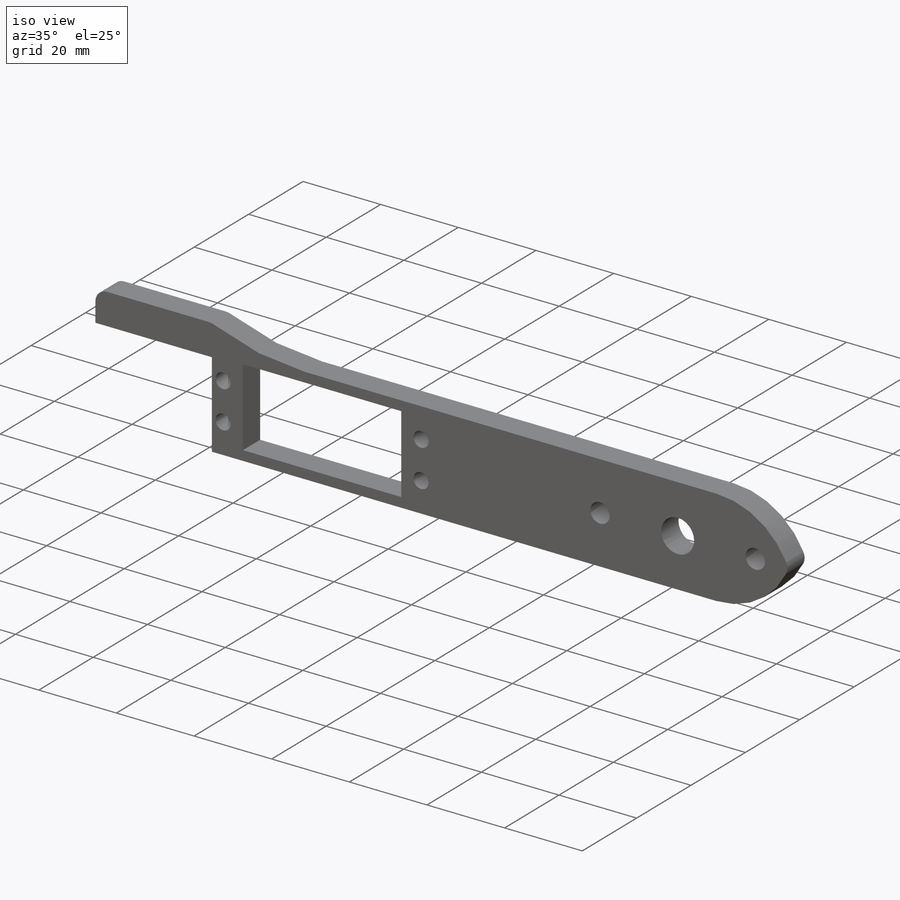
[diagram: iso view]
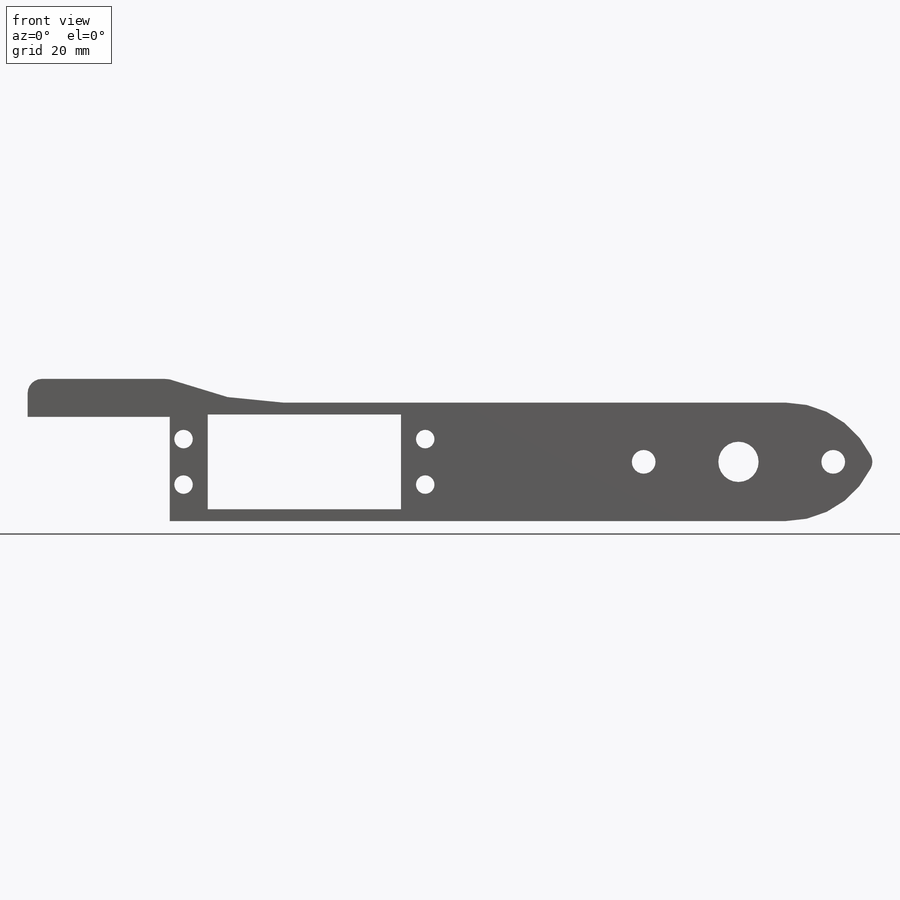
[diagram: front view]
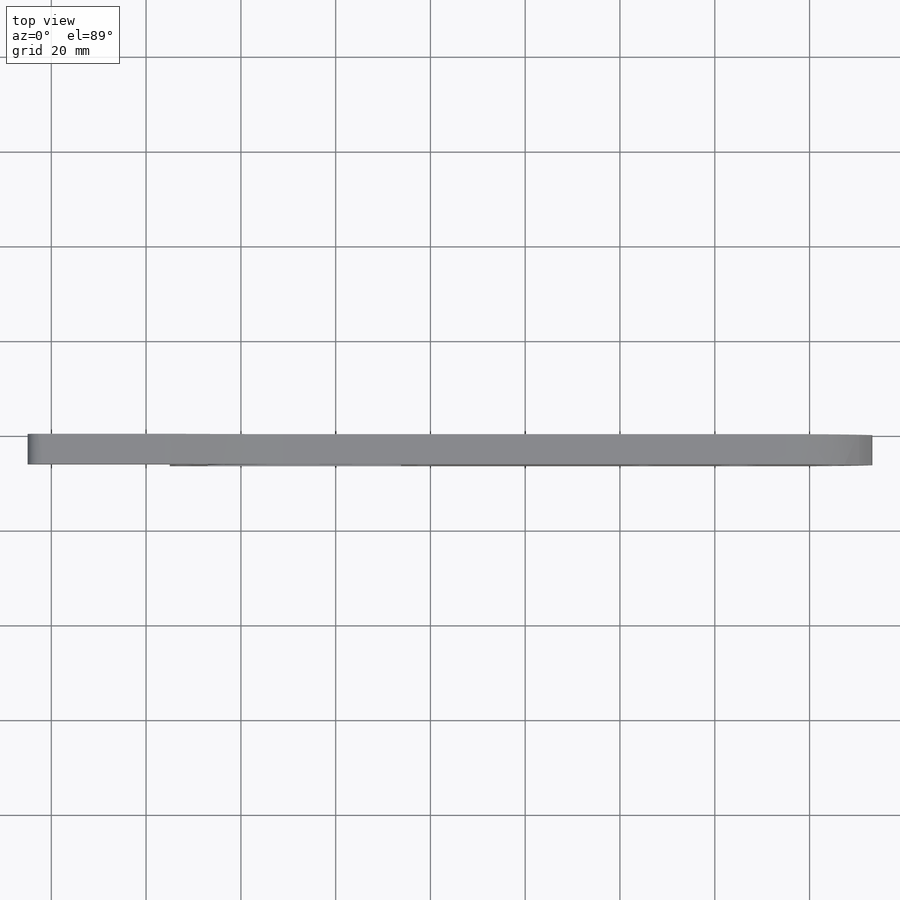
[diagram: top view]
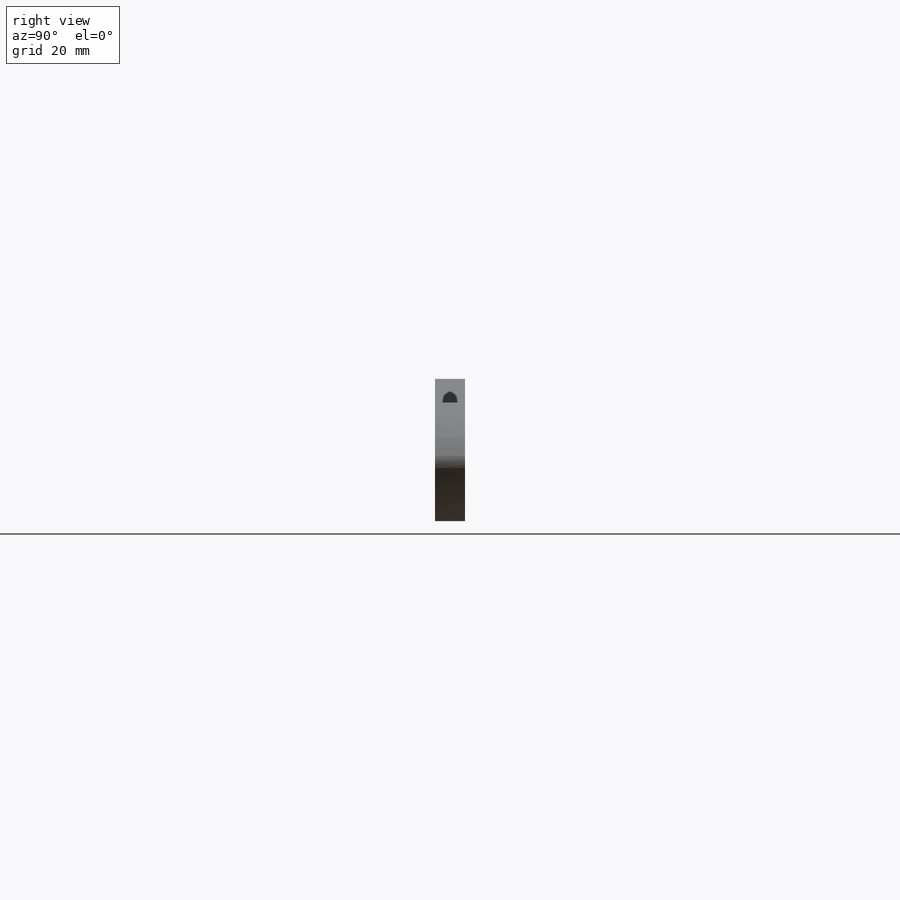
[diagram: right view]
SOLIDWORKS PART (.sldprt)
format: sldprt  version: not decoded by parser v0  size: 262,656 bytes
history: native  units: mm
features: fillet x4, sketch x3, extrude x2, material x1, cut_extrude x1 (+11 scaffold rows collapsed)
feature tree (22):
  scaffold x11  (default folders/planes/origin — collapsed)
  material  "Material <not specified>"
  sketch  "Sketch1"  dims[c1.D3=5.0mm c1.D5=5.0mm c1.D6=~7.373818mm c1.D7=8.5mm c1.D1=25.0mm c1.D2=150.0mm c1.D4=40.0mm c2.D5=10.0mm c2.D6=20.0mm]
  extrude  "Boss-Extrude1"  Depth=6.35mm
  fillet  "Fillet1"  Radius=20mm
  sketch  "Sketch2"  dims[c1.D5=3.9mm c1.D6=1.95mm c1.D7=1.95mm c1.D1=20.0mm c1.D2=40.8mm c1.D3=8.0mm c1.D4=5.1mm c2.D6=4.8mm c2.D7=~7.081549mm]
  cut_extrude  "Cut-Extrude1"  [1 undecoded]
  sketch  "Sketch3"  dims[D1=3.0mm D2=5.0mm]
  extrude  "Boss-Extrude2"  Depth=30mm
  fillet  "Fillet2"  Radius=60mm
  fillet  "Fillet4"  Radius=5mm
  fillet  "Fillet5"  Radius=3mm
decode coverage: 9 of 10 modeling features carry decoded parameters
note: ~ marks probable driven/reference dimensions
note: 1 parameter value undecoded
note: suppression state not decoded; provenance and decode notes live in map.json
